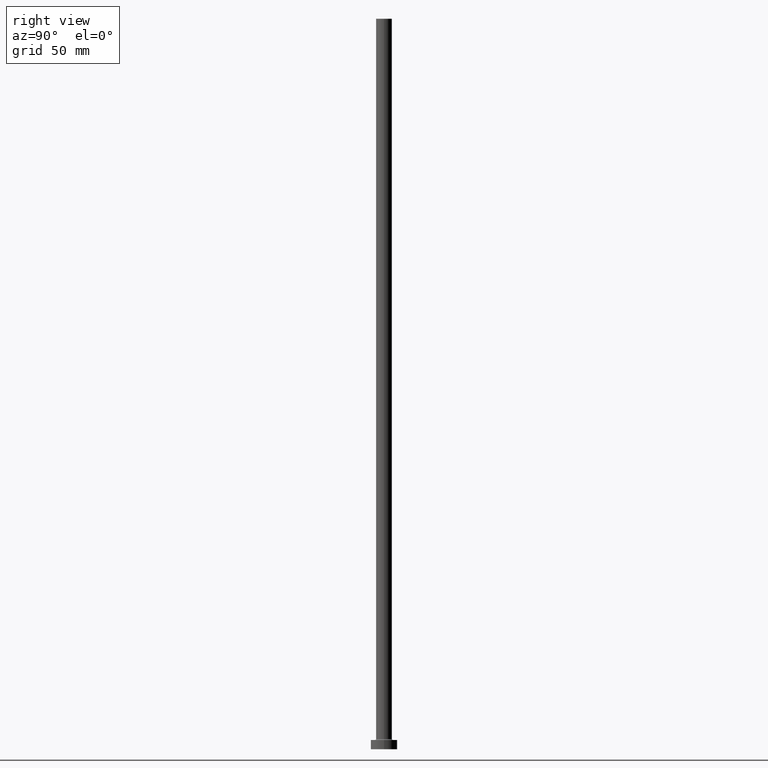
[diagram: clean part render]
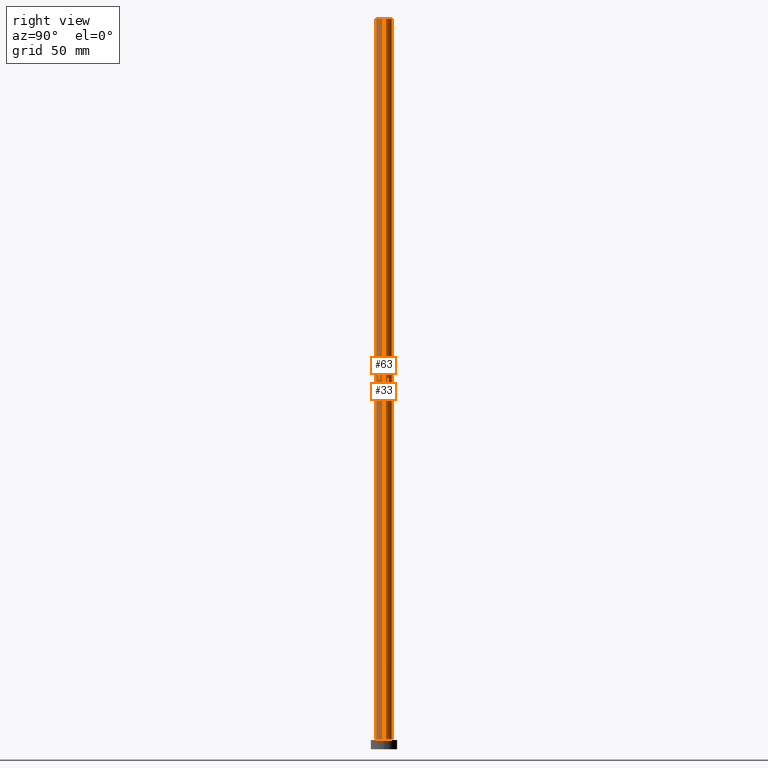
[diagram: same view with one multi-face feature highlighted, each face labeled with its STEP entity id]
A machine part, right view. The highlighted faces form ONE feature: a constant-radius fillet chain: 2 tangent blend faces with common blend radius 6 mm. The faces share edges in the B-rep.
Their STEP definitions:
[1] entity #63 (Cylinder):
#21 = DIRECTION ( 'NONE',  ( 0.000000000000000000, 0.000000000000000000, 1.000000000000000000 ) ) ;
#32 = VERTEX_POINT ( 'NONE', #283 ) ;
#50 = CARTESIAN_POINT ( 'NONE',  ( 6.000000000000000888, 7.347880794884120722E-16, 550.0000000000000000 ) ) ;
#53 = DIRECTION ( 'NONE',  ( 0.000000000000000000, 0.000000000000000000, 1.000000000000000000 ) ) ;
#62 = ORIENTED_EDGE ( 'NONE', *, *, #347, .F. ) ;
#63 = ADVANCED_FACE ( 'NONE', ( #357 ), #439, .T. ) ;
#64 = CARTESIAN_POINT ( 'NONE',  ( 6.000000000000000888, 7.347880794884120722E-16, 550.0000000000000000 ) ) ;
#89 = VERTEX_POINT ( 'NONE', #389 ) ;
#131 = LINE ( 'NONE', #64, #269 ) ;
#132 = VERTEX_POINT ( 'NONE', #353 ) ;
#154 = DIRECTION ( 'NONE',  ( -0.000000000000000000, -0.000000000000000000, -1.000000000000000000 ) ) ;
#165 = EDGE_CURVE ( 'NONE', #132, #312, #456, .T. ) ;
#167 = DIRECTION ( 'NONE',  ( -0.000000000000000000, -0.000000000000000000, -1.000000000000000000 ) ) ;
#173 = LINE ( 'NONE', #411, #237 ) ;
#219 = EDGE_CURVE ( 'NONE', #89, #32, #409, .T. ) ;
#225 = DIRECTION ( 'NONE',  ( 1.000000000000000000, 0.000000000000000000, 0.000000000000000000 ) ) ;
#237 = VECTOR ( 'NONE', #306, 1000.000000000000000 ) ;
#262 = DIRECTION ( 'NONE',  ( 1.000000000000000000, 0.000000000000000000, 0.000000000000000000 ) ) ;
#267 = AXIS2_PLACEMENT_3D ( 'NONE', #301, #53, #225 ) ;
#269 = VECTOR ( 'NONE', #167, 1000.000000000000000 ) ;
#276 = EDGE_LOOP ( 'NONE', ( #62, #351, #394, #376 ) ) ;
#283 = CARTESIAN_POINT ( 'NONE',  ( 6.000000000000000888, 7.347880794884120722E-16, 7.700000000000040146 ) ) ;
#290 = DIRECTION ( 'NONE',  ( -1.000000000000000000, 0.000000000000000000, 0.000000000000000000 ) ) ;
#294 = CARTESIAN_POINT ( 'NONE',  ( 0.000000000000000000, 0.000000000000000000, 550.0000000000000000 ) ) ;
#301 = CARTESIAN_POINT ( 'NONE',  ( 0.000000000000000000, 0.000000000000000000, 7.700000000000040146 ) ) ;
#306 = DIRECTION ( 'NONE',  ( -0.000000000000000000, -0.000000000000000000, -1.000000000000000000 ) ) ;
#312 = VERTEX_POINT ( 'NONE', #50 ) ;
#324 = CARTESIAN_POINT ( 'NONE',  ( 0.000000000000000000, 0.000000000000000000, 550.0000000000000000 ) ) ;
#347 = EDGE_CURVE ( 'NONE', #312, #32, #131, .T. ) ;
#351 = ORIENTED_EDGE ( 'NONE', *, *, #165, .F. ) ;
#353 = CARTESIAN_POINT ( 'NONE',  ( -6.000000000000000888, 0.000000000000000000, 550.0000000000000000 ) ) ;
#357 = FACE_OUTER_BOUND ( 'NONE', #276, .T. ) ;
#364 = AXIS2_PLACEMENT_3D ( 'NONE', #294, #21, #262 ) ;
#376 = ORIENTED_EDGE ( 'NONE', *, *, #219, .T. ) ;
#377 = AXIS2_PLACEMENT_3D ( 'NONE', #324, #154, #290 ) ;
#389 = CARTESIAN_POINT ( 'NONE',  ( -6.000000000000000888, 0.000000000000000000, 7.700000000000040146 ) ) ;
#394 = ORIENTED_EDGE ( 'NONE', *, *, #397, .T. ) ;
#397 = EDGE_CURVE ( 'NONE', #132, #89, #173, .T. ) ;
#409 = CIRCLE ( 'NONE', #267, 6.000000000000000888 ) ;
#411 = CARTESIAN_POINT ( 'NONE',  ( -6.000000000000000888, 0.000000000000000000, 550.0000000000000000 ) ) ;
#439 = CYLINDRICAL_SURFACE ( 'NONE', #377, 6.000000000000000888 ) ;
#456 = CIRCLE ( 'NONE', #364, 6.000000000000000888 ) ;
[2] entity #33 (Cylinder):
#23 = DIRECTION ( 'NONE',  ( 1.000000000000000000, 0.000000000000000000, 0.000000000000000000 ) ) ;
#32 = VERTEX_POINT ( 'NONE', #283 ) ;
#33 = ADVANCED_FACE ( 'NONE', ( #246 ), #250, .T. ) ;
#42 = ORIENTED_EDGE ( 'NONE', *, *, #405, .T. ) ;
#50 = CARTESIAN_POINT ( 'NONE',  ( 6.000000000000000888, 7.347880794884120722E-16, 550.0000000000000000 ) ) ;
#64 = CARTESIAN_POINT ( 'NONE',  ( 6.000000000000000888, 7.347880794884120722E-16, 550.0000000000000000 ) ) ;
#89 = VERTEX_POINT ( 'NONE', #389 ) ;
#94 = EDGE_LOOP ( 'NONE', ( #197, #421, #42, #236 ) ) ;
#131 = LINE ( 'NONE', #64, #269 ) ;
#132 = VERTEX_POINT ( 'NONE', #353 ) ;
#144 = AXIS2_PLACEMENT_3D ( 'NONE', #432, #188, #292 ) ;
#155 = AXIS2_PLACEMENT_3D ( 'NONE', #442, #226, #23 ) ;
#167 = DIRECTION ( 'NONE',  ( -0.000000000000000000, -0.000000000000000000, -1.000000000000000000 ) ) ;
#173 = LINE ( 'NONE', #411, #237 ) ;
#188 = DIRECTION ( 'NONE',  ( -0.000000000000000000, -0.000000000000000000, -1.000000000000000000 ) ) ;
#197 = ORIENTED_EDGE ( 'NONE', *, *, #198, .F. ) ;
#198 = EDGE_CURVE ( 'NONE', #312, #132, #337, .T. ) ;
#214 = AXIS2_PLACEMENT_3D ( 'NONE', #341, #413, #234 ) ;
#226 = DIRECTION ( 'NONE',  ( 0.000000000000000000, 0.000000000000000000, 1.000000000000000000 ) ) ;
#234 = DIRECTION ( 'NONE',  ( 1.000000000000000000, 0.000000000000000000, 0.000000000000000000 ) ) ;
#236 = ORIENTED_EDGE ( 'NONE', *, *, #397, .F. ) ;
#237 = VECTOR ( 'NONE', #306, 1000.000000000000000 ) ;
#246 = FACE_OUTER_BOUND ( 'NONE', #94, .T. ) ;
#250 = CYLINDRICAL_SURFACE ( 'NONE', #144, 6.000000000000000888 ) ;
#269 = VECTOR ( 'NONE', #167, 1000.000000000000000 ) ;
#283 = CARTESIAN_POINT ( 'NONE',  ( 6.000000000000000888, 7.347880794884120722E-16, 7.700000000000040146 ) ) ;
#292 = DIRECTION ( 'NONE',  ( -1.000000000000000000, 0.000000000000000000, 0.000000000000000000 ) ) ;
#306 = DIRECTION ( 'NONE',  ( -0.000000000000000000, -0.000000000000000000, -1.000000000000000000 ) ) ;
#312 = VERTEX_POINT ( 'NONE', #50 ) ;
#337 = CIRCLE ( 'NONE', #155, 6.000000000000000888 ) ;
#341 = CARTESIAN_POINT ( 'NONE',  ( 0.000000000000000000, 0.000000000000000000, 7.700000000000040146 ) ) ;
#347 = EDGE_CURVE ( 'NONE', #312, #32, #131, .T. ) ;
#353 = CARTESIAN_POINT ( 'NONE',  ( -6.000000000000000888, 0.000000000000000000, 550.0000000000000000 ) ) ;
#389 = CARTESIAN_POINT ( 'NONE',  ( -6.000000000000000888, 0.000000000000000000, 7.700000000000040146 ) ) ;
#397 = EDGE_CURVE ( 'NONE', #132, #89, #173, .T. ) ;
#405 = EDGE_CURVE ( 'NONE', #32, #89, #450, .T. ) ;
#411 = CARTESIAN_POINT ( 'NONE',  ( -6.000000000000000888, 0.000000000000000000, 550.0000000000000000 ) ) ;
#413 = DIRECTION ( 'NONE',  ( 0.000000000000000000, 0.000000000000000000, 1.000000000000000000 ) ) ;
#421 = ORIENTED_EDGE ( 'NONE', *, *, #347, .T. ) ;
#432 = CARTESIAN_POINT ( 'NONE',  ( 0.000000000000000000, 0.000000000000000000, 550.0000000000000000 ) ) ;
#442 = CARTESIAN_POINT ( 'NONE',  ( 0.000000000000000000, 0.000000000000000000, 550.0000000000000000 ) ) ;
#450 = CIRCLE ( 'NONE', #214, 6.000000000000000888 ) ;